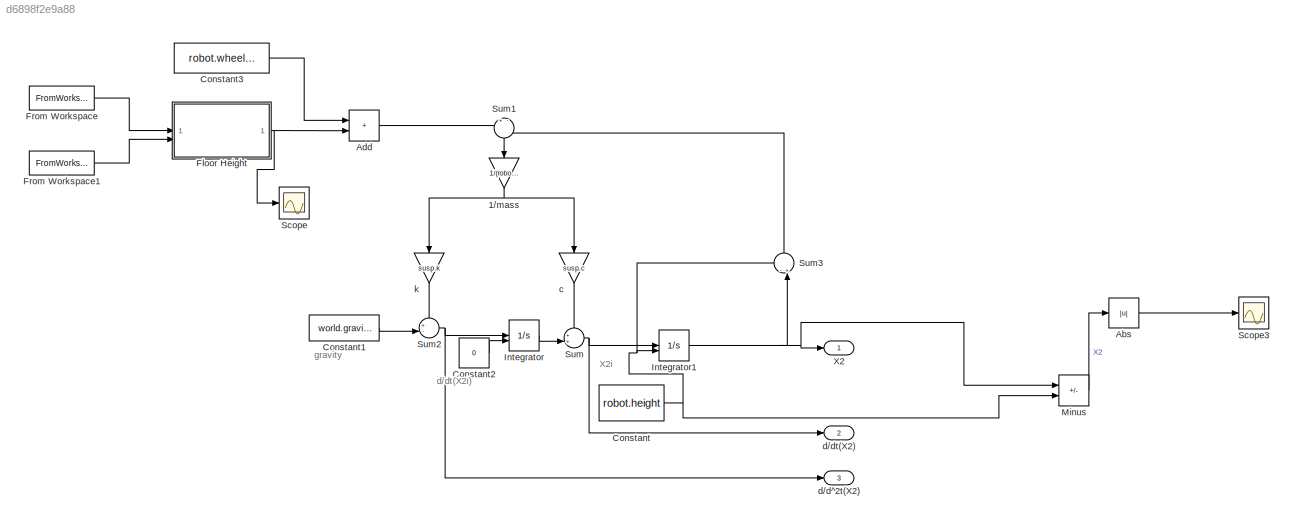
MODEL slx_d6898f2e9a88
KIND model
CONFIG AbsTol = auto
CONFIG EnableMultiTasking = off
CONFIG FixedStep = auto
CONFIG MaxStep = 1e-4
CONFIG MinStep = auto
CONFIG RelTol = 1e-3
CONFIG SampleTimeConstraint = Unconstrained
CONFIG SolverName = ode45
CONFIG StartTime = 0.0
CONFIG StopTime = 33/v+1
BLOCK [Gain] 1//mass
  Gain = 1/(robot.mass_payload+robot.mass_robot)
  NameLocation = left
BLOCK [Abs] Abs
  SaturateOnIntegerOverflow = off
BLOCK [Sum] Add
  IconShape = rectangular
BLOCK [Constant] Constant
  Value = robot.height
BLOCK [Constant] Constant1
  Value = world.gravity
BLOCK [Constant] Constant2
  Value = 0
BLOCK [Constant] Constant3
  Value = robot.wheel_radius
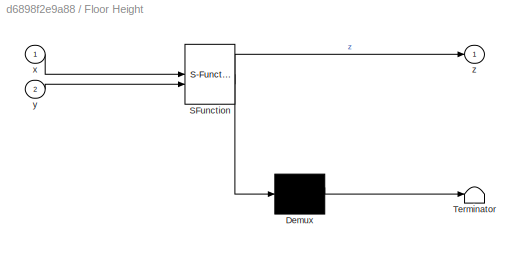
BLOCK [SubSystem] Floor Height
  ErrorFcn = Stateflow.Translate.translate
  PermitHierarchicalResolution = ExplicitOnly
  SFBlockType = MATLAB Function
  TreatAsAtomicUnit = on
BLOCK [Demux] Floor Height/ Demux 
  Outputs = 1
BLOCK [S-Function] Floor Height/ SFunction 
  EnableBusSupport = off
  FunctionName = sf_sfun
  PortCounts = [2 2]
  SFcnIsStateOwnerBlock = off
  SFunctionDeploymentMode = off
  Tag = Stateflow S-Function 2
BLOCK [Terminator] Floor Height/ Terminator 
BLOCK [Inport] Floor Height/x
BLOCK [Inport] Floor Height/y
  Port = 2
BLOCK [Outport] Floor Height/z
BLOCK [FromWorkspace] From Workspace
  VariableName = x_sig
BLOCK [FromWorkspace] From Workspace1
  VariableName = y_sig
BLOCK [Integrator] Integrator
  InitialConditionSource = external
BLOCK [Integrator] Integrator1
  InitialConditionSource = external
BLOCK [Sum] Minus
  IconShape = rectangular
  Inputs = +-
BLOCK [Scope] Scope
  ActiveDisplayYMaximum = 0.034373747332040322
  ActiveDisplayYMinimum = -0.0093713376250666811
  Floating = off
  GraphicalSettings = {"Style":{"BackgroundColor":[0.12941176470588237,0.12941176470588237,0.12941176470588237],"AxesColor":[0.07058823529411765,0.07058823529411765,0.07058823529411765],"LabelsColor":[0.8509803921568627,0.8509803921568627,0.8509803921568627],"PreserveColors":false,"Visible":[true],"LineStyle":["-"],"LineWidth":[1.5],"BarWidth":[0.9],"LineColor":["auto"],"LineFaceAlpha":[1],"LineEdgeAlpha":[1],"Marker":...<+1900ch>
  MultipleDisplayCache = [{"MaxYLimMag":0.034373747332040322,"MaxYLimReal":0.034373747332040322,"MinYLimMag":0,"MinYLimReal":-0.0093713376250666811,"PlotAsMagnitudePhase":false,"ShowGrid":true,"ShowLegend":false,"Title":"%<SignalLabel>","YLabel":""}]
  NumInputPorts = 1
  ScopeFrameLocation = window
  Visible = on
  WasSavedAsWebScope = on
  WindowPosition = [360.000000,190.000000,560.000000,420.000000,]
BLOCK [Scope] Scope3
  ActiveDisplayYMaximum = 0.16987499876441214
  ActiveDisplayYMinimum = -0.018874999862712457
  DataLoggingVariableName = ScopeData3
  Floating = off
  GraphicalSettings = {"Style":{"BackgroundColor":[0.12941176470588237,0.12941176470588237,0.12941176470588237],"AxesColor":[0.07058823529411765,0.07058823529411765,0.07058823529411765],"LabelsColor":[0.8509803921568627,0.8509803921568627,0.8509803921568627],"PreserveColors":false,"Visible":[true],"LineStyle":["-"],"LineWidth":[1.5],"BarWidth":[0.9],"LineColor":["auto"],"LineFaceAlpha":[1],"LineEdgeAlpha":[1],"Marker":...<+1996ch>
  MultipleDisplayCache = [{"MaxYLimMag":0.16987499876441214,"MaxYLimReal":0.16987499876441214,"MinYLimMag":0,"MinYLimReal":-0.018874999862712457,"PlotAsMagnitudePhase":false,"ShowGrid":true,"ShowLegend":false,"Title":"%<SignalLabel>","YLabel":""}]
  NumInputPorts = 1
  ScopeFrameLocation = window
  WasSavedAsWebScope = on
  WindowPosition = [322.000000,228.000000,637.000000,345.000000,]
BLOCK [Sum] Sum
  Inputs = ++|
BLOCK [Sum] Sum1
  Inputs = +-
  NameLocation = left
BLOCK [Sum] Sum2
  Inputs = +-|
BLOCK [Sum] Sum3
  Inputs = -+|
  NameLocation = right
BLOCK [Outport] X2
BLOCK [Gain] c
  Gain = susp.c
  NameLocation = left
BLOCK [Outport] d//d^2t(X2)
  Port = 3
BLOCK [Outport] d//dt(X2)
  Port = 2
BLOCK [Gain] k
  Gain = susp.k
  NameLocation = left
ANNOTATION (root): X2i
ANNOTATION (root): d/dt(X2i)
ANNOTATION (root): gravity
NET 1//mass:1 -> c:1, k:1
LINE Abs:1 -> Scope3:1
LINE Add:1 -> Sum1:1
LINE Constant1:1 -> Sum2:2
LINE Constant2:1 -> Integrator:2
LINE Constant3:1 -> Add:1
NET Constant:1 -> Integrator1:2, Minus:2, Sum3:1
NET Floor Height:1 -> Add:2, Scope:1
LINE From Workspace1:1 -> Floor Height:2
LINE From Workspace:1 -> Floor Height:1
NET Integrator1:1 -> Minus:1, Sum3:2, X2:1
LINE Integrator:1 -> Sum:2
LINE Minus:1 -> Abs:1
LINE Sum1:1 -> 1//mass:1
NET Sum2:1 -> Integrator:1, d//d^2t(X2):1
LINE Sum3:1 -> Sum1:2
NET Sum:1 -> Integrator1:1, d//dt(X2):1
LINE c:1 -> Sum:1
LINE k:1 -> Sum2:1
note: NET lines group one-source signal fan-out (src -> all destinations, sorted); 1:1 wires keep LINE
CHART Floor Height states=1 transitions=1
  STATE_LABEL 'eML_blk_kernel()'
  STATE_LABEL 'SCRIPT:\nfunction z = floorHeightFcn(x, y)\n%#codegen\n% FLOORHEIGHTFCN  Return floor height [m] at position (x,y).\n% Suitable for MATLAB Function blocks (no dynamic sizing / cat / zeros).\n\n%% ---- CONSTANTS --------------------------------------------------------\ntile_pitch          = 0.3048;  % 1 ft in m\ngrout_width         = 0.010;   % 1 cm in m \ngrout_depth         = 0.005;   % 5 mm in m\ntile_sur...<+1735ch>'
CHART  states=0 transitions=0
